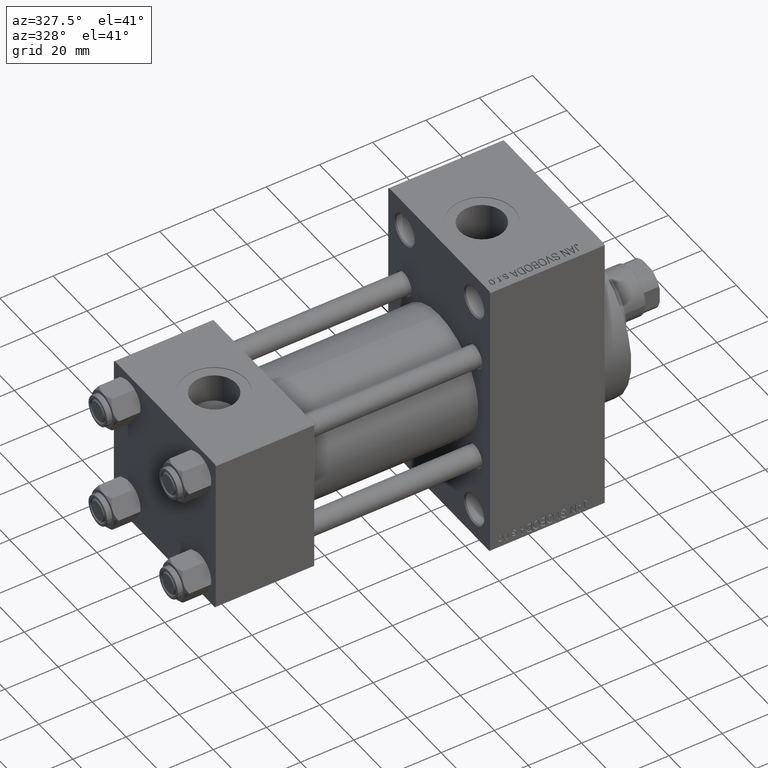
[diagram: clean part render]
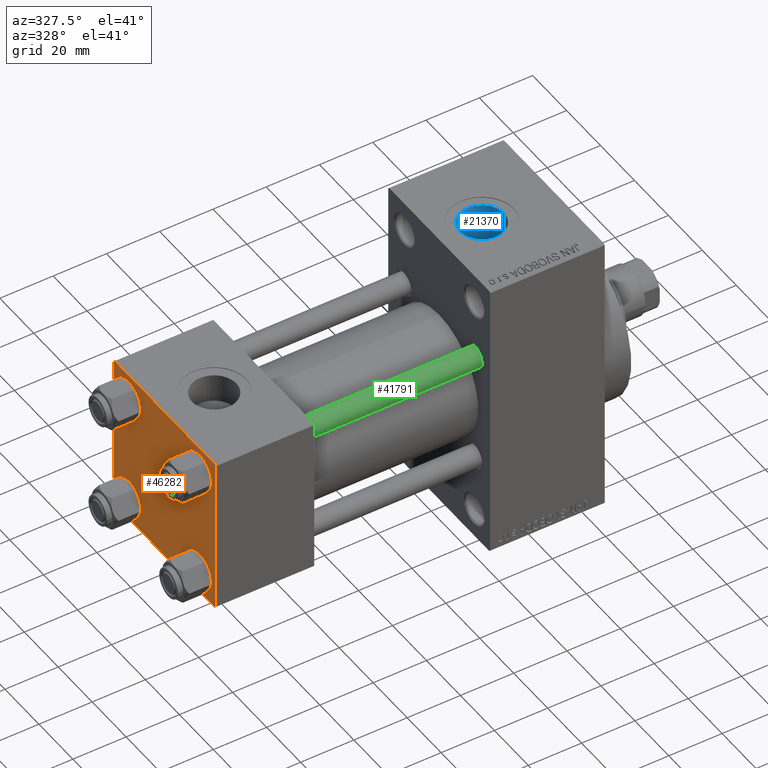
[diagram: same view with three faces highlighted in distinct colors, each labeled with its STEP entity id]
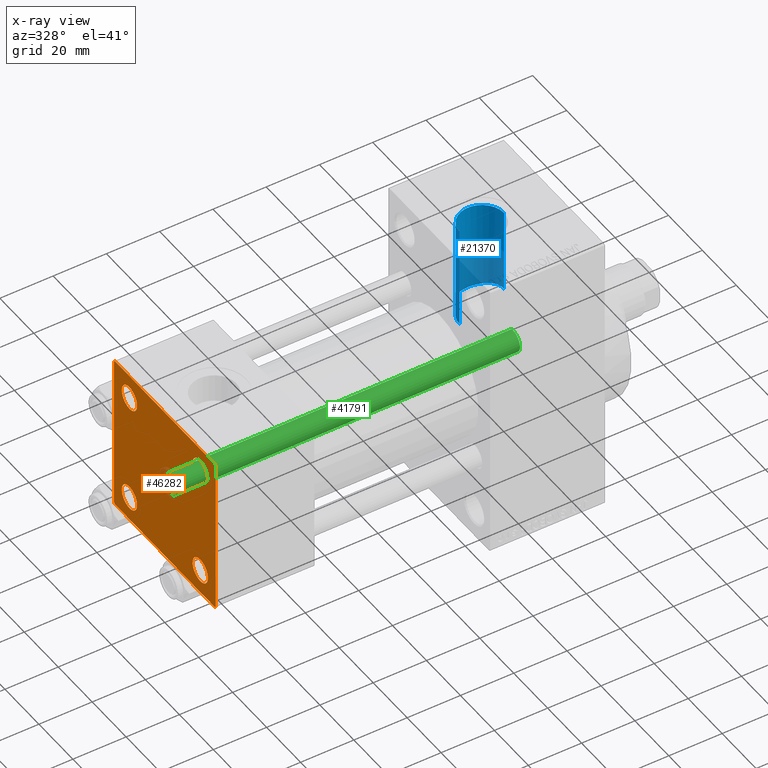
[diagram: x-ray of the same camera — body ghosted, the three highlighted faces saturated]
A machine part, auxiliary view with three faces highlighted in distinct colors.
The next image is the same camera in x-ray (body ghosted, the three faces saturated) — at least one of them is partly hidden behind the body in this view.
Their STEP definitions:

[orange] entity #46282 — the highlighted planar face has unit normal (-1, 0, 0).
#303 = EDGE_CURVE ( 'NONE', #34157, #25904, #11101, .T. ) ;
#777 = LINE ( 'NONE', #38907, #27121 ) ;
#1631 = LINE ( 'NONE', #32040, #14806 ) ;
#1635 = CIRCLE ( 'NONE', #33538, 4.500000000000017764 ) ;
#1816 = CARTESIAN_POINT ( 'NONE',  ( 0.000000000000000000, 29.74999999999957723, -29.75000000000040501 ) ) ;
#2300 = EDGE_LOOP ( 'NONE', ( #4343, #12610 ) ) ;
#2593 = VERTEX_POINT ( 'NONE', #3969 ) ;
#2779 = FACE_OUTER_BOUND ( 'NONE', #14380, .T. ) ;
#3119 = VERTEX_POINT ( 'NONE', #25312 ) ;
#3422 = EDGE_CURVE ( 'NONE', #27675, #3119, #777, .T. ) ;
#3505 = LINE ( 'NONE', #29461, #13692 ) ;
#3969 = CARTESIAN_POINT ( 'NONE',  ( 0.000000000000000000, 20.84999999999999787, -16.34999999999998366 ) ) ;
#4087 = VERTEX_POINT ( 'NONE', #27271 ) ;
#4223 = DIRECTION ( 'NONE',  ( 0.000000000000000000, 0.000000000000000000, 1.000000000000000000 ) ) ;
#4343 = ORIENTED_EDGE ( 'NONE', *, *, #37230, .T. ) ;
#5215 = LINE ( 'NONE', #20424, #30061 ) ;
#5229 = AXIS2_PLACEMENT_3D ( 'NONE', #26116, #33834, #10890 ) ;
#5348 = DIRECTION ( 'NONE',  ( 1.000000000000000000, -0.000000000000000000, 0.000000000000000000 ) ) ;
#6022 = CARTESIAN_POINT ( 'NONE',  ( 0.000000000000000000, 29.99999999999999289, -29.50000000000000000 ) ) ;
#6158 = ORIENTED_EDGE ( 'NONE', *, *, #22837, .T. ) ;
#6462 = ORIENTED_EDGE ( 'NONE', *, *, #46567, .F. ) ;
#6815 = DIRECTION ( 'NONE',  ( 0.000000000000000000, 0.000000000000000000, -1.000000000000000000 ) ) ;
#7141 = EDGE_CURVE ( 'NONE', #45597, #4087, #13738, .T. ) ;
#7186 = EDGE_CURVE ( 'NONE', #27675, #15814, #3505, .T. ) ;
#7263 = DIRECTION ( 'NONE',  ( -0.000000000000000000, 0.000000000000000000, 1.000000000000000000 ) ) ;
#7367 = CARTESIAN_POINT ( 'NONE',  ( 0.000000000000000000, 29.99999999999999289, 29.50000000000000000 ) ) ;
#7499 = CARTESIAN_POINT ( 'NONE',  ( 0.000000000000000000, 0.000000000000000000, 0.000000000000000000 ) ) ;
#7665 = AXIS2_PLACEMENT_3D ( 'NONE', #33468, #48680, #44919 ) ;
#8131 = VECTOR ( 'NONE', #35694, 1000.000000000000000 ) ;
#8148 = ORIENTED_EDGE ( 'NONE', *, *, #7141, .T. ) ;
#8409 = CARTESIAN_POINT ( 'NONE',  ( 0.000000000000000000, -29.49999999999998579, 29.99999999999999289 ) ) ;
#9275 = LINE ( 'NONE', #1816, #14026 ) ;
#10295 = LINE ( 'NONE', #13793, #27277 ) ;
#10890 = DIRECTION ( 'NONE',  ( 0.000000000000000000, 0.000000000000000000, 1.000000000000000000 ) ) ;
#11101 = CIRCLE ( 'NONE', #44516, 4.500000000000017764 ) ;
#11498 = ORIENTED_EDGE ( 'NONE', *, *, #24335, .T. ) ;
#11620 = EDGE_CURVE ( 'NONE', #27968, #41478, #10295, .T. ) ;
#12610 = ORIENTED_EDGE ( 'NONE', *, *, #23150, .T. ) ;
#12916 = CARTESIAN_POINT ( 'NONE',  ( 0.000000000000000000, -30.00000000000000000, 29.49999999999999289 ) ) ;
#13080 = DIRECTION ( 'NONE',  ( 0.000000000000000000, -0.7071067811865474617, 0.7071067811865474617 ) ) ;
#13379 = ORIENTED_EDGE ( 'NONE', *, *, #22941, .T. ) ;
#13689 = LINE ( 'NONE', #38046, #33257 ) ;
#13692 = VECTOR ( 'NONE', #37659, 1000.000000000000114 ) ;
#13738 = LINE ( 'NONE', #28964, #8131 ) ;
#13793 = CARTESIAN_POINT ( 'NONE',  ( 0.000000000000000000, 29.99999999999999289, 30.00000000000000000 ) ) ;
#14026 = VECTOR ( 'NONE', #36464, 999.9999999999998863 ) ;
#14203 = DIRECTION ( 'NONE',  ( 0.000000000000000000, 0.000000000000000000, 1.000000000000000000 ) ) ;
#14380 = EDGE_LOOP ( 'NONE', ( #17999, #6158, #8148, #24437, #23020, #17010, #6462, #38854 ) ) ;
#14806 = VECTOR ( 'NONE', #13080, 1000.000000000000114 ) ;
#14853 = AXIS2_PLACEMENT_3D ( 'NONE', #17271, #43956, #25011 ) ;
#15351 = VERTEX_POINT ( 'NONE', #42935 ) ;
#15802 = DIRECTION ( 'NONE',  ( 1.000000000000000000, -0.000000000000000000, 0.000000000000000000 ) ) ;
#15814 = VERTEX_POINT ( 'NONE', #8409 ) ;
#16517 = CARTESIAN_POINT ( 'NONE',  ( 0.000000000000000000, 20.84999999999999787, 25.35000000000001918 ) ) ;
#16851 = EDGE_CURVE ( 'NONE', #17704, #29419, #48963, .T. ) ;
#17010 = ORIENTED_EDGE ( 'NONE', *, *, #7186, .T. ) ;
#17271 = CARTESIAN_POINT ( 'NONE',  ( 0.000000000000000000, 20.84999999999999787, -20.85000000000000142 ) ) ;
#17704 = VERTEX_POINT ( 'NONE', #42580 ) ;
#17978 = FACE_BOUND ( 'NONE', #42820, .T. ) ;
#17999 = ORIENTED_EDGE ( 'NONE', *, *, #11620, .T. ) ;
#18476 = FACE_BOUND ( 'NONE', #44423, .T. ) ;
#18651 = ORIENTED_EDGE ( 'NONE', *, *, #40100, .T. ) ;
#18714 = DIRECTION ( 'NONE',  ( -1.000000000000000000, 0.000000000000000000, -0.000000000000000000 ) ) ;
#20138 = ORIENTED_EDGE ( 'NONE', *, *, #30060, .T. ) ;
#20424 = CARTESIAN_POINT ( 'NONE',  ( 0.000000000000000000, 29.99999999999999289, 30.00000000000000000 ) ) ;
#21754 = CARTESIAN_POINT ( 'NONE',  ( 0.000000000000000000, 29.49999999999999289, 30.00000000000000000 ) ) ;
#21972 = CIRCLE ( 'NONE', #5229, 4.500000000000017764 ) ;
#22074 = AXIS2_PLACEMENT_3D ( 'NONE', #7499, #18714, #7263 ) ;
#22467 = PLANE ( 'NONE',  #22074 ) ;
#22837 = EDGE_CURVE ( 'NONE', #41478, #45597, #9275, .T. ) ;
#22941 = EDGE_CURVE ( 'NONE', #15351, #2593, #29959, .T. ) ;
#23020 = ORIENTED_EDGE ( 'NONE', *, *, #3422, .F. ) ;
#23030 = CIRCLE ( 'NONE', #42902, 4.500000000000017764 ) ;
#23150 = EDGE_CURVE ( 'NONE', #37746, #42452, #21972, .T. ) ;
#23377 = EDGE_CURVE ( 'NONE', #4087, #3119, #1631, .T. ) ;
#24335 = EDGE_CURVE ( 'NONE', #2593, #15351, #47479, .T. ) ;
#24437 = ORIENTED_EDGE ( 'NONE', *, *, #23377, .T. ) ;
#25011 = DIRECTION ( 'NONE',  ( 0.000000000000000000, 0.000000000000000000, 1.000000000000000000 ) ) ;
#25312 = CARTESIAN_POINT ( 'NONE',  ( 0.000000000000000000, -30.00000000000000000, -29.50000000000001776 ) ) ;
#25683 = CARTESIAN_POINT ( 'NONE',  ( 0.000000000000000000, -20.84999999999999076, 20.85000000000000497 ) ) ;
#25904 = VERTEX_POINT ( 'NONE', #27174 ) ;
#26094 = DIRECTION ( 'NONE',  ( 0.000000000000000000, 0.7071067811865474617, -0.7071067811865474617 ) ) ;
#26116 = CARTESIAN_POINT ( 'NONE',  ( 0.000000000000000000, 20.84999999999999787, 20.85000000000000142 ) ) ;
#27121 = VECTOR ( 'NONE', #27449, 1000.000000000000000 ) ;
#27174 = CARTESIAN_POINT ( 'NONE',  ( 0.000000000000000000, -20.84999999999999076, 25.35000000000002274 ) ) ;
#27271 = CARTESIAN_POINT ( 'NONE',  ( 0.000000000000000000, -29.50000000000000000, -30.00000000000000711 ) ) ;
#27277 = VECTOR ( 'NONE', #6815, 1000.000000000000000 ) ;
#27449 = DIRECTION ( 'NONE',  ( 0.000000000000000000, 0.000000000000000000, -1.000000000000000000 ) ) ;
#27675 = VERTEX_POINT ( 'NONE', #12916 ) ;
#27968 = VERTEX_POINT ( 'NONE', #7367 ) ;
#28473 = CARTESIAN_POINT ( 'NONE',  ( 0.000000000000000000, -20.84999999999999076, -25.35000000000002274 ) ) ;
#28964 = CARTESIAN_POINT ( 'NONE',  ( 0.000000000000000000, 29.99999999999999289, -30.00000000000000000 ) ) ;
#29206 = CARTESIAN_POINT ( 'NONE',  ( 0.000000000000000000, 29.49999999999997868, -30.00000000000000000 ) ) ;
#29419 = VERTEX_POINT ( 'NONE', #28473 ) ;
#29461 = CARTESIAN_POINT ( 'NONE',  ( -0.000000000000000000, -29.74999999999999645, 29.74999999999999645 ) ) ;
#29959 = CIRCLE ( 'NONE', #7665, 4.500000000000017764 ) ;
#30060 = EDGE_CURVE ( 'NONE', #29419, #17704, #23030, .T. ) ;
#30061 = VECTOR ( 'NONE', #35642, 1000.000000000000000 ) ;
#31017 = DIRECTION ( 'NONE',  ( 0.000000000000000000, 0.000000000000000000, 1.000000000000000000 ) ) ;
#31708 = CARTESIAN_POINT ( 'NONE',  ( 0.000000000000000000, 20.84999999999999787, 16.34999999999998366 ) ) ;
#32040 = CARTESIAN_POINT ( 'NONE',  ( 0.000000000000000000, -29.75000000000001066, -29.75000000000001066 ) ) ;
#32281 = AXIS2_PLACEMENT_3D ( 'NONE', #34764, #15802, #31017 ) ;
#33257 = VECTOR ( 'NONE', #26094, 1000.000000000000114 ) ;
#33468 = CARTESIAN_POINT ( 'NONE',  ( 0.000000000000000000, 20.84999999999999787, -20.85000000000000142 ) ) ;
#33538 = AXIS2_PLACEMENT_3D ( 'NONE', #47970, #5348, #39501 ) ;
#33834 = DIRECTION ( 'NONE',  ( 1.000000000000000000, -0.000000000000000000, 0.000000000000000000 ) ) ;
#34151 = ORIENTED_EDGE ( 'NONE', *, *, #303, .T. ) ;
#34157 = VERTEX_POINT ( 'NONE', #46697 ) ;
#34764 = CARTESIAN_POINT ( 'NONE',  ( 0.000000000000000000, -20.84999999999999076, 20.85000000000000497 ) ) ;
#35642 = DIRECTION ( 'NONE',  ( 0.000000000000000000, -1.000000000000000000, -1.156482317317871725E-16 ) ) ;
#35694 = DIRECTION ( 'NONE',  ( 0.000000000000000000, -1.000000000000000000, -1.156482317317871725E-16 ) ) ;
#36464 = DIRECTION ( 'NONE',  ( -0.000000000000000000, -0.7071067811865574537, -0.7071067811865376918 ) ) ;
#37058 = CIRCLE ( 'NONE', #32281, 4.500000000000017764 ) ;
#37146 = DIRECTION ( 'NONE',  ( 1.000000000000000000, -0.000000000000000000, 0.000000000000000000 ) ) ;
#37230 = EDGE_CURVE ( 'NONE', #42452, #37746, #1635, .T. ) ;
#37659 = DIRECTION ( 'NONE',  ( -0.000000000000000000, 0.7071067811865474617, 0.7071067811865474617 ) ) ;
#37746 = VERTEX_POINT ( 'NONE', #31708 ) ;
#38046 = CARTESIAN_POINT ( 'NONE',  ( 0.000000000000000000, 29.74999999999999645, 29.74999999999999645 ) ) ;
#38384 = DIRECTION ( 'NONE',  ( 1.000000000000000000, -0.000000000000000000, 0.000000000000000000 ) ) ;
#38580 = AXIS2_PLACEMENT_3D ( 'NONE', #42819, #43570, #43314 ) ;
#38854 = ORIENTED_EDGE ( 'NONE', *, *, #47757, .T. ) ;
#38907 = CARTESIAN_POINT ( 'NONE',  ( 0.000000000000000000, -30.00000000000000000, 29.99999999999999289 ) ) ;
#39501 = DIRECTION ( 'NONE',  ( 0.000000000000000000, 0.000000000000000000, 1.000000000000000000 ) ) ;
#40100 = EDGE_CURVE ( 'NONE', #25904, #34157, #37058, .T. ) ;
#41416 = FACE_BOUND ( 'NONE', #42097, .T. ) ;
#41478 = VERTEX_POINT ( 'NONE', #6022 ) ;
#41654 = FACE_BOUND ( 'NONE', #2300, .T. ) ;
#41722 = VERTEX_POINT ( 'NONE', #21754 ) ;
#41759 = ORIENTED_EDGE ( 'NONE', *, *, #16851, .T. ) ;
#42097 = EDGE_LOOP ( 'NONE', ( #41759, #20138 ) ) ;
#42452 = VERTEX_POINT ( 'NONE', #16517 ) ;
#42580 = CARTESIAN_POINT ( 'NONE',  ( 0.000000000000000000, -20.84999999999999076, -16.34999999999998721 ) ) ;
#42819 = CARTESIAN_POINT ( 'NONE',  ( 0.000000000000000000, -20.84999999999999076, -20.85000000000000497 ) ) ;
#42820 = EDGE_LOOP ( 'NONE', ( #18651, #34151 ) ) ;
#42902 = AXIS2_PLACEMENT_3D ( 'NONE', #46094, #38384, #4223 ) ;
#42935 = CARTESIAN_POINT ( 'NONE',  ( 0.000000000000000000, 20.84999999999999787, -25.35000000000001918 ) ) ;
#43314 = DIRECTION ( 'NONE',  ( 0.000000000000000000, 0.000000000000000000, 1.000000000000000000 ) ) ;
#43570 = DIRECTION ( 'NONE',  ( 1.000000000000000000, -0.000000000000000000, 0.000000000000000000 ) ) ;
#43956 = DIRECTION ( 'NONE',  ( 1.000000000000000000, -0.000000000000000000, 0.000000000000000000 ) ) ;
#44423 = EDGE_LOOP ( 'NONE', ( #11498, #13379 ) ) ;
#44516 = AXIS2_PLACEMENT_3D ( 'NONE', #25683, #37146, #14203 ) ;
#44919 = DIRECTION ( 'NONE',  ( 0.000000000000000000, 0.000000000000000000, 1.000000000000000000 ) ) ;
#45597 = VERTEX_POINT ( 'NONE', #29206 ) ;
#46094 = CARTESIAN_POINT ( 'NONE',  ( 0.000000000000000000, -20.84999999999999076, -20.85000000000000497 ) ) ;
#46282 = ADVANCED_FACE ( 'NONE', ( #17978, #41416, #18476, #41654, #2779 ), #22467, .T. ) ;
#46567 = EDGE_CURVE ( 'NONE', #41722, #15814, #5215, .T. ) ;
#46697 = CARTESIAN_POINT ( 'NONE',  ( 0.000000000000000000, -20.84999999999999076, 16.34999999999998721 ) ) ;
#47479 = CIRCLE ( 'NONE', #14853, 4.500000000000017764 ) ;
#47757 = EDGE_CURVE ( 'NONE', #41722, #27968, #13689, .T. ) ;
#47970 = CARTESIAN_POINT ( 'NONE',  ( 0.000000000000000000, 20.84999999999999787, 20.85000000000000142 ) ) ;
#48680 = DIRECTION ( 'NONE',  ( 1.000000000000000000, -0.000000000000000000, 0.000000000000000000 ) ) ;
#48963 = CIRCLE ( 'NONE', #38580, 4.500000000000017764 ) ;

[blue] entity #21370 — the highlighted cylindrical surface (edge-blend (fillet) strip) has radius 8.33 mm, axis along (0, 0, -1).
#243 = CARTESIAN_POINT ( 'NONE',  ( 126.2906412269955183, 4.051397720758682652, 22.13557804199978918 ) ) ;
#435 = LINE ( 'NONE', #46290, #7162 ) ;
#723 = CARTESIAN_POINT ( 'NONE',  ( 116.5452642440799593, 7.971261652067433090, 21.04094346462041187 ) ) ;
#947 = CARTESIAN_POINT ( 'NONE',  ( 111.0370892081069911, 2.496846008205413803, 15.30507511735611104 ) ) ;
#1388 = B_SPLINE_CURVE_WITH_KNOTS ( 'NONE', 3,
 ( #35336, #38586, #16132, #46068, #947, #35095, #4915, #34854, #9147, #19636, #12388, #24114 ),
 .UNSPECIFIED., .F., .F.,
 ( 4, 2, 2, 2, 2, 4 ),
 ( 0.02657822482517068277, 0.02809229971003305085, 0.02960637459489541545, 0.03112044947975778353, 0.03187748692218897451, 0.03263452436462017242 ),
 .UNSPECIFIED. ) ;
#2847 = DIRECTION ( 'NONE',  ( 1.000000000000000000, 0.000000000000000000, 0.000000000000000000 ) ) ;
#2860 = LINE ( 'NONE', #30280, #33934 ) ;
#4448 = CARTESIAN_POINT ( 'NONE',  ( 113.9286092801891357, 6.661339213704146722, 21.49628500278264198 ) ) ;
#4915 = CARTESIAN_POINT ( 'NONE',  ( 111.6151021817840103, 3.885135241872855083, 15.01159398638492526 ) ) ;
#5448 = CARTESIAN_POINT ( 'NONE',  ( 119.0000000000000142, 6.302828629382400162E-15, 77.29999999999999716 ) ) ;
#5481 = ORIENTED_EDGE ( 'NONE', *, *, #12319, .F. ) ;
#5836 = VERTEX_POINT ( 'NONE', #37005 ) ;
#7162 = VECTOR ( 'NONE', #20344, 1000.000000000000000 ) ;
#8427 = CARTESIAN_POINT ( 'NONE',  ( 121.1507344276369196, 8.058714127658458182, 21.00752502832087032 ) ) ;
#8566 = ORIENTED_EDGE ( 'NONE', *, *, #42932, .T. ) ;
#8671 = CARTESIAN_POINT ( 'NONE',  ( 124.4564057214795696, 6.307878676097783632, 21.59935801946436840 ) ) ;
#8912 = VERTEX_POINT ( 'NONE', #48666 ) ;
#9147 = CARTESIAN_POINT ( 'NONE',  ( 112.1328253103859112, 4.721366081625444799, 14.76490778285211292 ) ) ;
#10804 = DIRECTION ( 'NONE',  ( -0.000000000000000000, -0.000000000000000000, -1.000000000000000000 ) ) ;
#12319 = EDGE_CURVE ( 'NONE', #5836, #8912, #34772, .T. ) ;
#12388 = CARTESIAN_POINT ( 'NONE',  ( 112.5783165169662823, 5.311397431478259712, 14.56289306040262410 ) ) ;
#12411 = CARTESIAN_POINT ( 'NONE',  ( 122.7236659699604218, 7.463206326023605897, 21.22729274660729004 ) ) ;
#12658 = CARTESIAN_POINT ( 'NONE',  ( 118.6299664090158643, 8.332541612595141700, 20.90025414590698460 ) ) ;
#13009 = EDGE_CURVE ( 'NONE', #36694, #5836, #37673, .T. ) ;
#13412 = DIRECTION ( 'NONE',  ( -1.000000000000000000, 0.000000000000000000, 0.000000000000000000 ) ) ;
#15218 = ORIENTED_EDGE ( 'NONE', *, *, #36037, .T. ) ;
#15292 = B_SPLINE_CURVE_WITH_KNOTS ( 'NONE', 3,
 ( #46814, #38603, #4448, #16151, #23641, #19661, #31366, #34873, #723, #46330, #15913, #12658, #27393, #42584, #31129, #8427, #46566, #27890, #12411, #27638, #42828, #8671, #23888, #20146, #35357, #34395, #243, #15433, #42106, #25571, #17829, #29569, #40769, #29061 ),
 .UNSPECIFIED., .F., .F.,
 ( 4, 2, 2, 2, 2, 2, 2, 2, 2, 2, 2, 2, 2, 2, 2, 2, 4 ),
 ( 0.000000000000000000, 0.002532697760304246197, 0.003165872200380317504, 0.003799046640456389245, 0.005065395520608569589, 0.006331744400760749500, 0.007598093280912930278, 0.008864442161065109321, 0.01013079104121729010, 0.01139713992136947261, 0.01266348880152165166, 0.01392983768167383417, 0.01519618656182601668, 0.01646253544197819746, 0.01772888432213037477, 0.01899523320228255555, 0.02026158208243473285 ),
 .UNSPECIFIED. ) ;
#15433 = CARTESIAN_POINT ( 'NONE',  ( 126.6630236205749043, 3.293226682608803468, 22.26100394775997771 ) ) ;
#15754 = EDGE_LOOP ( 'NONE', ( #5481, #29274, #15218, #33601, #23390, #8566 ) ) ;
#15913 = CARTESIAN_POINT ( 'NONE',  ( 117.7869814485030702, 8.252076137422058366, 20.93215498966415211 ) ) ;
#16132 = CARTESIAN_POINT ( 'NONE',  ( 110.7174933147919376, 1.021562003714716838, 15.47433190880104981 ) ) ;
#16151 = CARTESIAN_POINT ( 'NONE',  ( 114.8222632032723851, 7.209673137828886524, 21.31393839863304862 ) ) ;
#17742 = VECTOR ( 'NONE', #27294, 1000.000000000000000 ) ;
#17829 = CARTESIAN_POINT ( 'NONE',  ( 127.1676325783012942, 1.690665256436923558, 22.44031409000265143 ) ) ;
#19636 = CARTESIAN_POINT ( 'NONE',  ( 112.4233358504305897, 5.118288244927959418, 14.63205129005097227 ) ) ;
#19661 = CARTESIAN_POINT ( 'NONE',  ( 115.3806461157530521, 7.505553168791503360, 21.21148300119394747 ) ) ;
#20146 = CARTESIAN_POINT ( 'NONE',  ( 125.3424573050792361, 5.416427024620312558, 21.84059232546010065 ) ) ;
#20344 = DIRECTION ( 'NONE',  ( 0.000000000000000000, 0.000000000000000000, -1.000000000000000000 ) ) ;
#21370 = ADVANCED_FACE ( 'NONE', ( #28389 ), #24641, .F. ) ;
#22148 = EDGE_CURVE ( 'NONE', #22752, #33703, #1388, .T. ) ;
#22596 = EDGE_CURVE ( 'NONE', #43299, #33703, #2860, .T. ) ;
#22752 = VERTEX_POINT ( 'NONE', #34730 ) ;
#23390 = ORIENTED_EDGE ( 'NONE', *, *, #22596, .F. ) ;
#23641 = CARTESIAN_POINT ( 'NONE',  ( 115.0068402018593900, 7.313530319584597095, 21.27845421415786831 ) ) ;
#23888 = CARTESIAN_POINT ( 'NONE',  ( 124.7669506482355644, 6.025506335620705478, 21.68046190096924519 ) ) ;
#24114 = CARTESIAN_POINT ( 'NONE',  ( 112.7400000000000375, 5.495570943951149978, 14.49305695841977482 ) ) ;
#24641 = CYLINDRICAL_SURFACE ( 'NONE', #48317, 8.329999999999989413 ) ;
#25571 = CARTESIAN_POINT ( 'NONE',  ( 127.0718577897083321, 2.099993510347360370, 22.40540423522787350 ) ) ;
#25728 = AXIS2_PLACEMENT_3D ( 'NONE', #48227, #10804, #2847 ) ;
#26046 = DIRECTION ( 'NONE',  ( 0.000000000000000000, 0.000000000000000000, -1.000000000000000000 ) ) ;
#27294 = DIRECTION ( 'NONE',  ( 0.000000000000000000, 0.000000000000000000, -1.000000000000000000 ) ) ;
#27393 = CARTESIAN_POINT ( 'NONE',  ( 119.0516919710247095, 8.340554763309631525, 20.89702885938057975 ) ) ;
#27638 = CARTESIAN_POINT ( 'NONE',  ( 123.4551373660956557, 7.051020349556414324, 21.36774480484795902 ) ) ;
#27890 = CARTESIAN_POINT ( 'NONE',  ( 122.3390036589862433, 7.643039262353287455, 21.16267907401478610 ) ) ;
#28389 = FACE_OUTER_BOUND ( 'NONE', #15754, .T. ) ;
#29061 = CARTESIAN_POINT ( 'NONE',  ( 127.3299999999999983, 2.755455287773006291E-15, 22.50000000000000355 ) ) ;
#29274 = ORIENTED_EDGE ( 'NONE', *, *, #13009, .F. ) ;
#29569 = CARTESIAN_POINT ( 'NONE',  ( 127.2970606556255717, 0.8528513471424401526, 22.48774533044545976 ) ) ;
#29994 = CARTESIAN_POINT ( 'NONE',  ( 112.7400000000000375, 5.495570943951150866, 21.81854028114621613 ) ) ;
#30280 = CARTESIAN_POINT ( 'NONE',  ( 112.7400000000000375, 5.495570943951150866, 77.29999999999999716 ) ) ;
#31027 = CARTESIAN_POINT ( 'NONE',  ( 127.3299999999999983, 7.322959413072144135E-15, 77.29999999999999716 ) ) ;
#31128 = CARTESIAN_POINT ( 'NONE',  ( 112.7400000000000375, 5.495570943951149978, 14.49305695841977482 ) ) ;
#31129 = CARTESIAN_POINT ( 'NONE',  ( 120.3216909083368336, 8.235391011504217929, 20.93889481549790332 ) ) ;
#31366 = CARTESIAN_POINT ( 'NONE',  ( 115.5704381520594666, 7.594124707910252958, 21.17986642145409348 ) ) ;
#33601 = ORIENTED_EDGE ( 'NONE', *, *, #22148, .T. ) ;
#33703 = VERTEX_POINT ( 'NONE', #31128 ) ;
#33934 = VECTOR ( 'NONE', #26046, 1000.000000000000000 ) ;
#34395 = CARTESIAN_POINT ( 'NONE',  ( 126.0784950564940203, 4.410947285040731636, 22.06616050573156684 ) ) ;
#34730 = CARTESIAN_POINT ( 'NONE',  ( 110.6700000000000159, 1.898202536900960226E-15, 15.50000000000000000 ) ) ;
#34772 = LINE ( 'NONE', #31027, #17742 ) ;
#34854 = CARTESIAN_POINT ( 'NONE',  ( 111.9966437893200890, 4.516904326484488585, 14.82887833823965096 ) ) ;
#34873 = CARTESIAN_POINT ( 'NONE',  ( 116.1484526623329145, 7.837887213631843153, 21.09140609030398750 ) ) ;
#35095 = CARTESIAN_POINT ( 'NONE',  ( 111.3956202707476137, 3.437382318228909828, 15.12163903599513404 ) ) ;
#35336 = CARTESIAN_POINT ( 'NONE',  ( 110.6700000000000159, 1.898202536900960226E-15, 15.50000000000000000 ) ) ;
#35357 = CARTESIAN_POINT ( 'NONE',  ( 125.6044044703110103, 5.093465402724834945, 21.91867937644421005 ) ) ;
#36037 = EDGE_CURVE ( 'NONE', #36694, #22752, #435, .T. ) ;
#36694 = VERTEX_POINT ( 'NONE', #46896 ) ;
#37005 = CARTESIAN_POINT ( 'NONE',  ( 127.3299999999999983, 7.322959413072142557E-15, 54.29999999999999716 ) ) ;
#37673 = CIRCLE ( 'NONE', #25728, 8.329999999999989413 ) ;
#38586 = CARTESIAN_POINT ( 'NONE',  ( 110.6700000000000301, 0.5065624092609238849, 15.50000000000000355 ) ) ;
#38603 = CARTESIAN_POINT ( 'NONE',  ( 113.2948812944180332, 6.127635735486562929, 21.65933820537498633 ) ) ;
#39347 = DIRECTION ( 'NONE',  ( 0.000000000000000000, 0.000000000000000000, -1.000000000000000000 ) ) ;
#40769 = CARTESIAN_POINT ( 'NONE',  ( 127.3299999999999983, 0.4231877007468812790, 22.50000000000001066 ) ) ;
#42106 = CARTESIAN_POINT ( 'NONE',  ( 126.8200576936606438, 2.900268709722553240, 22.31592599689450651 ) ) ;
#42584 = CARTESIAN_POINT ( 'NONE',  ( 119.8956073634822559, 8.292491378959145010, 20.91614820275090736 ) ) ;
#42828 = CARTESIAN_POINT ( 'NONE',  ( 123.8013027033389193, 6.819764595693534659, 21.44323695491645410 ) ) ;
#42932 = EDGE_CURVE ( 'NONE', #43299, #8912, #15292, .T. ) ;
#43299 = VERTEX_POINT ( 'NONE', #29994 ) ;
#46068 = CARTESIAN_POINT ( 'NONE',  ( 110.9013610442521696, 2.013840356729672543, 15.37670263641652468 ) ) ;
#46290 = CARTESIAN_POINT ( 'NONE',  ( 110.6700000000000159, 6.302828629382400162E-15, 77.29999999999999716 ) ) ;
#46330 = CARTESIAN_POINT ( 'NONE',  ( 117.3628503782894654, 8.178415560073123203, 20.96129368941305060 ) ) ;
#46566 = CARTESIAN_POINT ( 'NONE',  ( 121.5539892842377299, 7.939907640306442360, 21.05309719302652027 ) ) ;
#46814 = CARTESIAN_POINT ( 'NONE',  ( 112.7400000000000375, 5.495570943951150866, 21.81854028114621613 ) ) ;
#46896 = CARTESIAN_POINT ( 'NONE',  ( 110.6700000000000159, 6.302828629382400162E-15, 54.29999999999999716 ) ) ;
#48227 = CARTESIAN_POINT ( 'NONE',  ( 119.0000000000000142, 6.302828629382400162E-15, 54.29999999999999716 ) ) ;
#48317 = AXIS2_PLACEMENT_3D ( 'NONE', #5448, #39347, #13412 ) ;
#48666 = CARTESIAN_POINT ( 'NONE',  ( 127.3299999999999983, 2.755455287773006291E-15, 22.50000000000000355 ) ) ;

[green] entity #41791 — the highlighted cylindrical surface (edge-blend (fillet) strip) has radius 4 mm, axis along (1, 0, 0).
#1551 = DIRECTION ( 'NONE',  ( 1.000000000000000000, 0.000000000000000000, 0.000000000000000000 ) ) ;
#3850 = DIRECTION ( 'NONE',  ( 1.000000000000000000, 0.000000000000000000, 0.000000000000000000 ) ) ;
#4376 = AXIS2_PLACEMENT_3D ( 'NONE', #45483, #11325, #3850 ) ;
#6456 = AXIS2_PLACEMENT_3D ( 'NONE', #20489, #35706, #1551 ) ;
#8352 = CIRCLE ( 'NONE', #4376, 4.000000000000000000 ) ;
#8987 = CARTESIAN_POINT ( 'NONE',  ( -4.000000000000000000, 0.000000000000000000, 0.4999999999999726885 ) ) ;
#11325 = DIRECTION ( 'NONE',  ( 0.000000000000000000, 0.000000000000000000, -1.000000000000000000 ) ) ;
#13699 = DIRECTION ( 'NONE',  ( -0.000000000000000000, -0.000000000000000000, -1.000000000000000000 ) ) ;
#14185 = CARTESIAN_POINT ( 'NONE',  ( 4.000000000000000000, 4.898587196589412829E-16, 130.0000000000000000 ) ) ;
#14261 = DIRECTION ( 'NONE',  ( -1.000000000000000000, 0.000000000000000000, 0.000000000000000000 ) ) ;
#14851 = AXIS2_PLACEMENT_3D ( 'NONE', #38593, #37207, #14261 ) ;
#15315 = CARTESIAN_POINT ( 'NONE',  ( -4.000000000000000000, 0.000000000000000000, 130.0000000000000000 ) ) ;
#17405 = EDGE_CURVE ( 'NONE', #40877, #35385, #8352, .T. ) ;
#17784 = CARTESIAN_POINT ( 'NONE',  ( 4.000000000000000000, 4.898587196589412829E-16, 129.5000000000000000 ) ) ;
#17944 = ORIENTED_EDGE ( 'NONE', *, *, #18314, .F. ) ;
#18314 = EDGE_CURVE ( 'NONE', #40877, #24471, #18818, .T. ) ;
#18818 = LINE ( 'NONE', #15315, #32283 ) ;
#19095 = ORIENTED_EDGE ( 'NONE', *, *, #37803, .T. ) ;
#20489 = CARTESIAN_POINT ( 'NONE',  ( 0.000000000000000000, 0.000000000000000000, 0.4999999999999726885 ) ) ;
#21990 = EDGE_CURVE ( 'NONE', #35385, #38752, #32406, .T. ) ;
#22281 = EDGE_LOOP ( 'NONE', ( #29599, #34585, #19095, #17944 ) ) ;
#24471 = VERTEX_POINT ( 'NONE', #8987 ) ;
#27507 = VECTOR ( 'NONE', #13699, 1000.000000000000000 ) ;
#29599 = ORIENTED_EDGE ( 'NONE', *, *, #17405, .T. ) ;
#31029 = CARTESIAN_POINT ( 'NONE',  ( -4.000000000000000000, 0.000000000000000000, 129.5000000000000000 ) ) ;
#32283 = VECTOR ( 'NONE', #34032, 1000.000000000000000 ) ;
#32406 = LINE ( 'NONE', #14185, #27507 ) ;
#34032 = DIRECTION ( 'NONE',  ( -0.000000000000000000, -0.000000000000000000, -1.000000000000000000 ) ) ;
#34585 = ORIENTED_EDGE ( 'NONE', *, *, #21990, .T. ) ;
#35385 = VERTEX_POINT ( 'NONE', #17784 ) ;
#35706 = DIRECTION ( 'NONE',  ( -0.000000000000000000, -0.000000000000000000, 1.000000000000000000 ) ) ;
#35909 = CIRCLE ( 'NONE', #6456, 4.000000000000000000 ) ;
#37207 = DIRECTION ( 'NONE',  ( -0.000000000000000000, -0.000000000000000000, -1.000000000000000000 ) ) ;
#37803 = EDGE_CURVE ( 'NONE', #38752, #24471, #35909, .T. ) ;
#37826 = CARTESIAN_POINT ( 'NONE',  ( 4.000000000000000000, 4.898587196589412829E-16, 0.4999999999999726885 ) ) ;
#38367 = FACE_OUTER_BOUND ( 'NONE', #22281, .T. ) ;
#38593 = CARTESIAN_POINT ( 'NONE',  ( 0.000000000000000000, 0.000000000000000000, 130.0000000000000000 ) ) ;
#38752 = VERTEX_POINT ( 'NONE', #37826 ) ;
#40877 = VERTEX_POINT ( 'NONE', #31029 ) ;
#41791 = ADVANCED_FACE ( 'NONE', ( #38367 ), #45831, .T. ) ;
#45483 = CARTESIAN_POINT ( 'NONE',  ( 0.000000000000000000, 0.000000000000000000, 129.5000000000000000 ) ) ;
#45831 = CYLINDRICAL_SURFACE ( 'NONE', #14851, 4.000000000000000000 ) ;